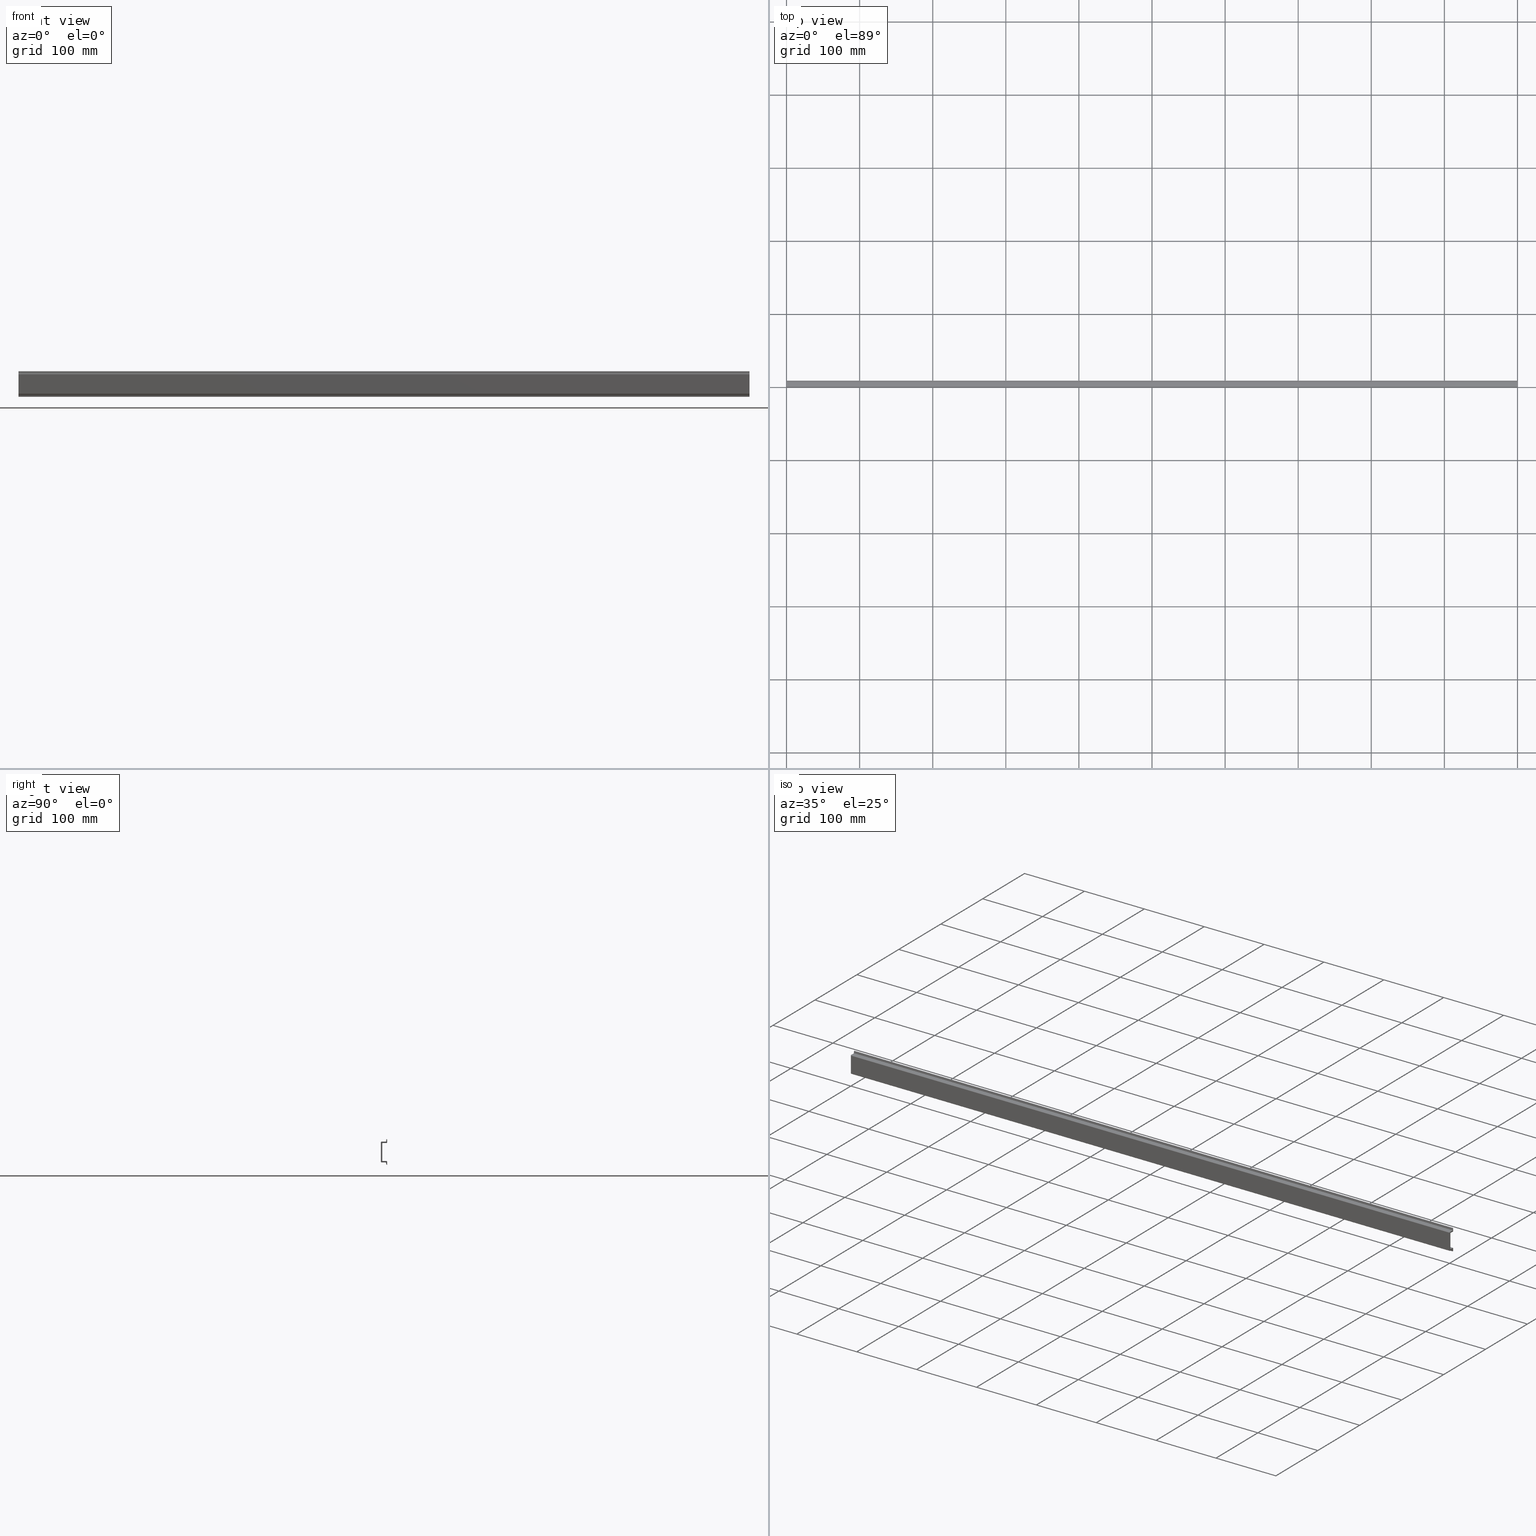
[diagram: canonical four-view strip — front | top / right | iso, engineering-drawing reading convention]
A machine part, canonical four-view strip (front | top / right | iso — engineering-drawing reading convention). The complete STEP part file that produces these views, byte-faithful:
ISO-10303-21;
HEADER;
FILE_DESCRIPTION (( 'STEP AP203' ),
    '1' );
FILE_NAME ('35x7,5 Al�minyum D�z Montaj Ray-1m.STEP',
    '2019-03-27T11:42:23',
    ( '' ),
    ( '' ),
    'SwSTEP 2.0',
    'SolidWorks 2011',
    '' );
FILE_SCHEMA (( 'CONFIG_CONTROL_DESIGN' ));
ENDSEC;

DATA;
#1 = PRODUCT ( '35x7,5 Al�minyum D�z Montaj Ray-1m', '35x7,5 Al�minyum D�z Montaj Ray-1m', '', ( #35 ) ) ;
#2 = UNCERTAINTY_MEASURE_WITH_UNIT (LENGTH_MEASURE( 1.000000000000000100E-005 ), #567, 'distance_accuracy_value', 'NONE');
#3 = DESIGN_CONTEXT ( 'detailed design', #664, 'design' ) ;
#4 = PRODUCT_DEFINITION_SHAPE ( 'NONE', 'NONE',  #655 ) ;
#5 = MANIFOLD_SOLID_BREP ( 'Y�kseklik-Ekstr�zyon1', #671 ) ;
#6 = COORDINATED_UNIVERSAL_TIME_OFFSET ( 3, 0, .AHEAD. ) ;
#7 = DIRECTION ( 'NONE',  ( 1.000000000000000000, 0.0000000000000000000, 0.0000000000000000000 ) ) ;
#8 = CALENDAR_DATE ( 2019, 27, 3 ) ;
#9 = DATE_AND_TIME ( #8, #758 ) ;
#10 = PERSON_AND_ORGANIZATION ( #663, #781 ) ;
#11 = PERSON_AND_ORGANIZATION ( #663, #781 ) ;
#12 = PERSON_AND_ORGANIZATION ( #663, #781 ) ;
#13 = APPLICATION_PROTOCOL_DEFINITION ( 'international standard', 'config_control_design', 1994, #665 ) ;
#14 = PERSON_AND_ORGANIZATION_ROLE ( 'classification_officer' ) ;
#15 = COORDINATED_UNIVERSAL_TIME_OFFSET ( 3, 0, .AHEAD. ) ;
#16 = CARTESIAN_POINT ( 'NONE',  ( 0.0000000000000000000, 0.0000000000000000000, 0.0000000000000000000 ) ) ;
#17 = CALENDAR_DATE ( 2019, 27, 3 ) ;
#18 = DATE_AND_TIME ( #17, #779 ) ;
#19 = DATE_TIME_ROLE ( 'classification_date' ) ;
#20 = COORDINATED_UNIVERSAL_TIME_OFFSET ( 3, 0, .AHEAD. ) ;
#21 = DATE_TIME_ROLE ( 'creation_date' ) ;
#22 = PERSON_AND_ORGANIZATION_ROLE ( 'design_supplier' ) ;
#23 = APPROVAL_ROLE ( '' ) ;
#24 = PERSON_AND_ORGANIZATION ( #663, #781 ) ;
#25 = APPROVAL_DATE_TIME ( #40, #656 ) ;
#26 = COORDINATED_UNIVERSAL_TIME_OFFSET ( 3, 0, .AHEAD. ) ;
#27 = CALENDAR_DATE ( 2019, 27, 3 ) ;
#28 = CALENDAR_DATE ( 2019, 27, 3 ) ;
#29 = PERSON_AND_ORGANIZATION ( #663, #781 ) ;
#30 = DATE_AND_TIME ( #27, #760 ) ;
#31 = APPROVAL_DATE_TIME ( #9, #658 ) ;
#32 = PERSON_AND_ORGANIZATION_ROLE ( 'creator' ) ;
#33 = SECURITY_CLASSIFICATION_LEVEL ( 'unclassified' ) ;
#34 = SHAPE_DEFINITION_REPRESENTATION ( #4, #662 ) ;
#35 = MECHANICAL_CONTEXT ( 'NONE', #665, 'mechanical' ) ;
#36 = DIRECTION ( 'NONE',  ( 0.0000000000000000000, 0.0000000000000000000, 1.000000000000000000 ) ) ;
#37 = PERSON_AND_ORGANIZATION_ROLE ( 'design_owner' ) ;
#38 = PERSON_AND_ORGANIZATION ( #663, #781 ) ;
#39 = APPROVAL_STATUS ( 'not_yet_approved' ) ;
#40 = DATE_AND_TIME ( #28, #762 ) ;
#41 = APPLICATION_PROTOCOL_DEFINITION ( 'international standard', 'config_control_design', 1994, #664 ) ;
#42 = PERSON_AND_ORGANIZATION ( #663, #781 ) ;
#43 = PERSON_AND_ORGANIZATION_ROLE ( 'creator' ) ;
#44 = APPROVAL_STATUS ( 'not_yet_approved' ) ;
#45 = APPROVAL_ROLE ( '' ) ;
#46 = APPROVAL_ROLE ( '' ) ;
#47 = APPROVAL_STATUS ( 'not_yet_approved' ) ;
#48 = DATE_AND_TIME ( #49, #767 ) ;
#49 = CALENDAR_DATE ( 2019, 27, 3 ) ;
#50 = APPROVAL_DATE_TIME ( #48, #617 ) ;
#51 = COORDINATED_UNIVERSAL_TIME_OFFSET ( 3, 0, .AHEAD. ) ;
#52 = PERSON_AND_ORGANIZATION ( #663, #781 ) ;
#53 = EDGE_LOOP ( 'NONE', ( #138, #106, #98, #130 ) ) ;
#54 = EDGE_LOOP ( 'NONE', ( #97, #114, #137, #94 ) ) ;
#55 = EDGE_LOOP ( 'NONE', ( #175, #199, #156, #209 ) ) ;
#56 = EDGE_LOOP ( 'NONE', ( #126, #107, #140, #133 ) ) ;
#57 = EDGE_LOOP ( 'NONE', ( #223, #259, #225, #255, #268, #233, #234, #267, #227, #249, #250, #252, #235, #260, #274, #248, #256, #263, #261, #232 ) ) ;
#58 = EDGE_LOOP ( 'NONE', ( #96, #112, #103, #111 ) ) ;
#59 = EDGE_LOOP ( 'NONE', ( #212, #189, #165, #152 ) ) ;
#60 = EDGE_LOOP ( 'NONE', ( #187, #190, #176, #191 ) ) ;
#61 = EDGE_LOOP ( 'NONE', ( #181, #196, #166, #193 ) ) ;
#62 = EDGE_LOOP ( 'NONE', ( #201, #179, #204, #171 ) ) ;
#63 = VERTEX_POINT ( 'NONE', #228 ) ;
#64 = EDGE_LOOP ( 'NONE', ( #125, #100, #93, #124 ) ) ;
#65 = EDGE_LOOP ( 'NONE', ( #194, #163, #206, #186 ) ) ;
#66 = EDGE_LOOP ( 'NONE', ( #95, #110, #155, #185 ) ) ;
#67 = EDGE_LOOP ( 'NONE', ( #127, #132, #129, #108 ) ) ;
#68 = EDGE_LOOP ( 'NONE', ( #158, #198, #169, #170 ) ) ;
#69 = CARTESIAN_POINT ( 'NONE',  ( 1000.000000000000000, 7.599999999999607100, 30.64999999999984200 ) ) ;
#70 = EDGE_LOOP ( 'NONE', ( #173, #151, #160, #210 ) ) ;
#71 = EDGE_LOOP ( 'NONE', ( #207, #208, #211, #153 ) ) ;
#72 = VERTEX_POINT ( 'NONE', #218 ) ;
#73 = VERTEX_POINT ( 'NONE', #253 ) ;
#74 = VERTEX_POINT ( 'NONE', #79 ) ;
#75 = EDGE_LOOP ( 'NONE', ( #154, #195, #180, #167 ) ) ;
#76 = EDGE_LOOP ( 'NONE', ( #182, #161, #178, #149, #203, #183, #172, #150, #192, #164, #184, #162, #157, #168, #224, #236, #245, #272, #241, #229 ) ) ;
#77 = EDGE_LOOP ( 'NONE', ( #91, #92, #113, #101 ) ) ;
#78 = EDGE_LOOP ( 'NONE', ( #202, #197, #188, #205 ) ) ;
#79 = CARTESIAN_POINT ( 'NONE',  ( 1000.000000000000000, 7.599999999999829100, -4.350000000000076000 ) ) ;
#80 = VERTEX_POINT ( 'NONE', #69 ) ;
#81 = EDGE_LOOP ( 'NONE', ( #177, #159, #200, #174 ) ) ;
#82 = VERTEX_POINT ( 'NONE', #89 ) ;
#83 = VERTEX_POINT ( 'NONE', #139 ) ;
#84 = VERTEX_POINT ( 'NONE', #273 ) ;
#85 = VERTEX_POINT ( 'NONE', #257 ) ;
#86 = VERTEX_POINT ( 'NONE', #237 ) ;
#87 = VERTEX_POINT ( 'NONE', #251 ) ;
#88 = VERTEX_POINT ( 'NONE', #258 ) ;
#89 = CARTESIAN_POINT ( 'NONE',  ( 1000.000000000000000, -1.110223024625156500E-013, 26.29999999999999000 ) ) ;
#90 = VERTEX_POINT ( 'NONE', #269 ) ;
#91 = ORIENTED_EDGE ( 'NONE', *, *, #615, .T. ) ;
#92 = ORIENTED_EDGE ( 'NONE', *, *, #603, .F. ) ;
#93 = ORIENTED_EDGE ( 'NONE', *, *, #580, .F. ) ;
#94 = ORIENTED_EDGE ( 'NONE', *, *, #604, .T. ) ;
#95 = ORIENTED_EDGE ( 'NONE', *, *, #591, .T. ) ;
#96 = ORIENTED_EDGE ( 'NONE', *, *, #568, .T. ) ;
#97 = ORIENTED_EDGE ( 'NONE', *, *, #589, .T. ) ;
#98 = ORIENTED_EDGE ( 'NONE', *, *, #628, .F. ) ;
#99 = VERTEX_POINT ( 'NONE', #244 ) ;
#100 = ORIENTED_EDGE ( 'NONE', *, *, #614, .F. ) ;
#101 = ORIENTED_EDGE ( 'NONE', *, *, #614, .T. ) ;
#102 = VERTEX_POINT ( 'NONE', #213 ) ;
#103 = ORIENTED_EDGE ( 'NONE', *, *, #585, .F. ) ;
#104 = VERTEX_POINT ( 'NONE', #226 ) ;
#105 = VERTEX_POINT ( 'NONE', #262 ) ;
#106 = ORIENTED_EDGE ( 'NONE', *, *, #604, .F. ) ;
#107 = ORIENTED_EDGE ( 'NONE', *, *, #630, .F. ) ;
#108 = ORIENTED_EDGE ( 'NONE', *, *, #630, .T. ) ;
#109 = VERTEX_POINT ( 'NONE', #239 ) ;
#110 = ORIENTED_EDGE ( 'NONE', *, *, #587, .F. ) ;
#111 = ORIENTED_EDGE ( 'NONE', *, *, #603, .T. ) ;
#112 = ORIENTED_EDGE ( 'NONE', *, *, #581, .F. ) ;
#113 = ORIENTED_EDGE ( 'NONE', *, *, #610, .F. ) ;
#114 = ORIENTED_EDGE ( 'NONE', *, *, #605, .F. ) ;
#115 = VERTEX_POINT ( 'NONE', #238 ) ;
#116 = VERTEX_POINT ( 'NONE', #230 ) ;
#117 = VERTEX_POINT ( 'NONE', #219 ) ;
#118 = VERTEX_POINT ( 'NONE', #264 ) ;
#119 = VERTEX_POINT ( 'NONE', #216 ) ;
#120 = VERTEX_POINT ( 'NONE', #265 ) ;
#121 = VERTEX_POINT ( 'NONE', #240 ) ;
#122 = VERTEX_POINT ( 'NONE', #254 ) ;
#123 = VERTEX_POINT ( 'NONE', #242 ) ;
#124 = ORIENTED_EDGE ( 'NONE', *, *, #616, .T. ) ;
#125 = ORIENTED_EDGE ( 'NONE', *, *, #613, .T. ) ;
#126 = ORIENTED_EDGE ( 'NONE', *, *, #584, .T. ) ;
#127 = ORIENTED_EDGE ( 'NONE', *, *, #575, .T. ) ;
#128 = VERTEX_POINT ( 'NONE', #270 ) ;
#129 = ORIENTED_EDGE ( 'NONE', *, *, #635, .F. ) ;
#130 = ORIENTED_EDGE ( 'NONE', *, *, #581, .T. ) ;
#131 = VERTEX_POINT ( 'NONE', #243 ) ;
#132 = ORIENTED_EDGE ( 'NONE', *, *, #578, .F. ) ;
#133 = ORIENTED_EDGE ( 'NONE', *, *, #605, .T. ) ;
#134 = VERTEX_POINT ( 'NONE', #266 ) ;
#135 = VERTEX_POINT ( 'NONE', #271 ) ;
#136 = VERTEX_POINT ( 'NONE', #214 ) ;
#137 = ORIENTED_EDGE ( 'NONE', *, *, #592, .F. ) ;
#138 = ORIENTED_EDGE ( 'NONE', *, *, #622, .T. ) ;
#139 = CARTESIAN_POINT ( 'NONE',  ( 0.0000000000000000000, 6.784593068918543000, -1.224273430855515900 ) ) ;
#140 = ORIENTED_EDGE ( 'NONE', *, *, #608, .F. ) ;
#141 = VERTEX_POINT ( 'NONE', #220 ) ;
#142 = VERTEX_POINT ( 'NONE', #246 ) ;
#143 = VERTEX_POINT ( 'NONE', #247 ) ;
#144 = VERTEX_POINT ( 'NONE', #215 ) ;
#145 = VERTEX_POINT ( 'NONE', #221 ) ;
#146 = VERTEX_POINT ( 'NONE', #222 ) ;
#147 = VERTEX_POINT ( 'NONE', #231 ) ;
#148 = VERTEX_POINT ( 'NONE', #217 ) ;
#149 = ORIENTED_EDGE ( 'NONE', *, *, #628, .T. ) ;
#150 = ORIENTED_EDGE ( 'NONE', *, *, #590, .T. ) ;
#151 = ORIENTED_EDGE ( 'NONE', *, *, #612, .F. ) ;
#152 = ORIENTED_EDGE ( 'NONE', *, *, #577, .T. ) ;
#153 = ORIENTED_EDGE ( 'NONE', *, *, #650, .T. ) ;
#154 = ORIENTED_EDGE ( 'NONE', *, *, #586, .T. ) ;
#155 = ORIENTED_EDGE ( 'NONE', *, *, #590, .F. ) ;
#156 = ORIENTED_EDGE ( 'NONE', *, *, #626, .F. ) ;
#157 = ORIENTED_EDGE ( 'NONE', *, *, #600, .T. ) ;
#158 = ORIENTED_EDGE ( 'NONE', *, *, #646, .T. ) ;
#159 = ORIENTED_EDGE ( 'NONE', *, *, #577, .F. ) ;
#160 = ORIENTED_EDGE ( 'NONE', *, *, #572, .F. ) ;
#161 = ORIENTED_EDGE ( 'NONE', *, *, #610, .T. ) ;
#162 = ORIENTED_EDGE ( 'NONE', *, *, #594, .T. ) ;
#163 = ORIENTED_EDGE ( 'NONE', *, *, #650, .F. ) ;
#164 = ORIENTED_EDGE ( 'NONE', *, *, #654, .T. ) ;
#165 = ORIENTED_EDGE ( 'NONE', *, *, #641, .F. ) ;
#166 = ORIENTED_EDGE ( 'NONE', *, *, #639, .F. ) ;
#167 = ORIENTED_EDGE ( 'NONE', *, *, #588, .T. ) ;
#168 = ORIENTED_EDGE ( 'NONE', *, *, #601, .T. ) ;
#169 = ORIENTED_EDGE ( 'NONE', *, *, #594, .F. ) ;
#170 = ORIENTED_EDGE ( 'NONE', *, *, #612, .T. ) ;
#171 = ORIENTED_EDGE ( 'NONE', *, *, #595, .T. ) ;
#172 = ORIENTED_EDGE ( 'NONE', *, *, #635, .T. ) ;
#173 = ORIENTED_EDGE ( 'NONE', *, *, #640, .T. ) ;
#174 = ORIENTED_EDGE ( 'NONE', *, *, #611, .T. ) ;
#175 = ORIENTED_EDGE ( 'NONE', *, *, #651, .T. ) ;
#176 = ORIENTED_EDGE ( 'NONE', *, *, #632, .F. ) ;
#177 = ORIENTED_EDGE ( 'NONE', *, *, #576, .T. ) ;
#178 = ORIENTED_EDGE ( 'NONE', *, *, #585, .T. ) ;
#179 = ORIENTED_EDGE ( 'NONE', *, *, #611, .F. ) ;
#180 = ORIENTED_EDGE ( 'NONE', *, *, #654, .F. ) ;
#181 = ORIENTED_EDGE ( 'NONE', *, *, #623, .T. ) ;
#182 = ORIENTED_EDGE ( 'NONE', *, *, #580, .T. ) ;
#183 = ORIENTED_EDGE ( 'NONE', *, *, #608, .T. ) ;
#184 = ORIENTED_EDGE ( 'NONE', *, *, #572, .T. ) ;
#185 = ORIENTED_EDGE ( 'NONE', *, *, #578, .T. ) ;
#186 = ORIENTED_EDGE ( 'NONE', *, *, #634, .T. ) ;
#187 = ORIENTED_EDGE ( 'NONE', *, *, #621, .T. ) ;
#188 = ORIENTED_EDGE ( 'NONE', *, *, #600, .F. ) ;
#189 = ORIENTED_EDGE ( 'NONE', *, *, #648, .F. ) ;
#190 = ORIENTED_EDGE ( 'NONE', *, *, #634, .F. ) ;
#191 = ORIENTED_EDGE ( 'NONE', *, *, #648, .T. ) ;
#192 = ORIENTED_EDGE ( 'NONE', *, *, #626, .T. ) ;
#193 = ORIENTED_EDGE ( 'NONE', *, *, #652, .T. ) ;
#194 = ORIENTED_EDGE ( 'NONE', *, *, #620, .T. ) ;
#195 = ORIENTED_EDGE ( 'NONE', *, *, #597, .F. ) ;
#196 = ORIENTED_EDGE ( 'NONE', *, *, #616, .F. ) ;
#197 = ORIENTED_EDGE ( 'NONE', *, *, #595, .F. ) ;
#198 = ORIENTED_EDGE ( 'NONE', *, *, #571, .F. ) ;
#199 = ORIENTED_EDGE ( 'NONE', *, *, #588, .F. ) ;
#200 = ORIENTED_EDGE ( 'NONE', *, *, #625, .F. ) ;
#201 = ORIENTED_EDGE ( 'NONE', *, *, #570, .T. ) ;
#202 = ORIENTED_EDGE ( 'NONE', *, *, #579, .T. ) ;
#203 = ORIENTED_EDGE ( 'NONE', *, *, #592, .T. ) ;
#204 = ORIENTED_EDGE ( 'NONE', *, *, #601, .F. ) ;
#205 = ORIENTED_EDGE ( 'NONE', *, *, #571, .T. ) ;
#206 = ORIENTED_EDGE ( 'NONE', *, *, #660, .F. ) ;
#207 = ORIENTED_EDGE ( 'NONE', *, *, #638, .T. ) ;
#208 = ORIENTED_EDGE ( 'NONE', *, *, #652, .F. ) ;
#209 = ORIENTED_EDGE ( 'NONE', *, *, #587, .T. ) ;
#210 = ORIENTED_EDGE ( 'NONE', *, *, #597, .T. ) ;
#211 = ORIENTED_EDGE ( 'NONE', *, *, #643, .F. ) ;
#212 = ORIENTED_EDGE ( 'NONE', *, *, #647, .T. ) ;
#213 = CARTESIAN_POINT ( 'NONE',  ( 1000.000000000000000, 7.227162839129873900, 27.73653245076380400 ) ) ;
#214 = CARTESIAN_POINT ( 'NONE',  ( 0.0000000000000000000, 1.899999999999901800, 25.09999999999967800 ) ) ;
#215 = CARTESIAN_POINT ( 'NONE',  ( 0.0000000000000000000, 6.494307887199402000, -0.9999999999997712900 ) ) ;
#216 = CARTESIAN_POINT ( 'NONE',  ( 1000.000000000000000, 1.899999999999901800, 25.09999999999967800 ) ) ;
#217 = CARTESIAN_POINT ( 'NONE',  ( 1000.000000000000000, 7.599999999999496000, 25.39999999999981000 ) ) ;
#218 = CARTESIAN_POINT ( 'NONE',  ( 0.0000000000000000000, 8.599999999999496900, 30.64999999999984200 ) ) ;
#219 = CARTESIAN_POINT ( 'NONE',  ( 1000.000000000000000, -5.551115123125782700E-014, 1.836970198720929400E-016 ) ) ;
#220 = CARTESIAN_POINT ( 'NONE',  ( 0.0000000000000000000, 2.199999999999979700, 0.8999999999998453700 ) ) ;
#221 = CARTESIAN_POINT ( 'NONE',  ( 0.0000000000000000000, 8.599999999999496900, 26.39999999999975700 ) ) ;
#222 = CARTESIAN_POINT ( 'NONE',  ( 0.0000000000000000000, 7.599999999999607100, 0.8999999999999008800 ) ) ;
#223 = ORIENTED_EDGE ( 'NONE', *, *, #613, .F. ) ;
#224 = ORIENTED_EDGE ( 'NONE', *, *, #625, .T. ) ;
#225 = ORIENTED_EDGE ( 'NONE', *, *, #638, .F. ) ;
#226 = CARTESIAN_POINT ( 'NONE',  ( 1000.000000000000000, 8.599999999999607100, -4.350000000000076000 ) ) ;
#227 = ORIENTED_EDGE ( 'NONE', *, *, #579, .F. ) ;
#228 = CARTESIAN_POINT ( 'NONE',  ( 0.0000000000000000000, 7.599999999999607100, 30.64999999999984200 ) ) ;
#229 = ORIENTED_EDGE ( 'NONE', *, *, #639, .T. ) ;
#230 = CARTESIAN_POINT ( 'NONE',  ( 1000.000000000000000, 0.9999999999998900900, 27.29999999999993700 ) ) ;
#231 = CARTESIAN_POINT ( 'NONE',  ( 1000.000000000000000, 1.899999999999901800, 1.199999999999867800 ) ) ;
#232 = ORIENTED_EDGE ( 'NONE', *, *, #615, .F. ) ;
#233 = ORIENTED_EDGE ( 'NONE', *, *, #647, .F. ) ;
#234 = ORIENTED_EDGE ( 'NONE', *, *, #576, .F. ) ;
#235 = ORIENTED_EDGE ( 'NONE', *, *, #651, .F. ) ;
#236 = ORIENTED_EDGE ( 'NONE', *, *, #641, .T. ) ;
#237 = CARTESIAN_POINT ( 'NONE',  ( 1000.000000000000000, 6.494307887199402000, -0.9999999999997712900 ) ) ;
#238 = CARTESIAN_POINT ( 'NONE',  ( 0.0000000000000000000, 0.9999999999998900900, 27.29999999999993700 ) ) ;
#239 = CARTESIAN_POINT ( 'NONE',  ( 1000.000000000000000, 2.199999999999868700, 25.39999999999986700 ) ) ;
#240 = CARTESIAN_POINT ( 'NONE',  ( 0.0000000000000000000, 7.227162839129873900, 27.73653245076380400 ) ) ;
#241 = ORIENTED_EDGE ( 'NONE', *, *, #643, .T. ) ;
#242 = CARTESIAN_POINT ( 'NONE',  ( 0.0000000000000000000, 7.599999999999496000, 25.39999999999981000 ) ) ;
#243 = CARTESIAN_POINT ( 'NONE',  ( 1000.000000000000000, 6.731207326816646100, 27.29999999999988000 ) ) ;
#244 = CARTESIAN_POINT ( 'NONE',  ( 0.0000000000000000000, -1.110223024625156500E-013, 26.29999999999999000 ) ) ;
#245 = ORIENTED_EDGE ( 'NONE', *, *, #632, .T. ) ;
#246 = CARTESIAN_POINT ( 'NONE',  ( 0.0000000000000000000, 1.899999999999901800, 1.199999999999867800 ) ) ;
#247 = CARTESIAN_POINT ( 'NONE',  ( 1000.000000000000000, 7.599999999999607100, 0.8999999999999008800 ) ) ;
#248 = ORIENTED_EDGE ( 'NONE', *, *, #584, .F. ) ;
#249 = ORIENTED_EDGE ( 'NONE', *, *, #646, .F. ) ;
#250 = ORIENTED_EDGE ( 'NONE', *, *, #640, .F. ) ;
#251 = CARTESIAN_POINT ( 'NONE',  ( 1000.000000000000000, 8.599999999999663900, -0.1000000000002111000 ) ) ;
#252 = ORIENTED_EDGE ( 'NONE', *, *, #586, .F. ) ;
#253 = CARTESIAN_POINT ( 'NONE',  ( 0.0000000000000000000, -5.551115123125782700E-014, 1.836970198720929400E-016 ) ) ;
#254 = CARTESIAN_POINT ( 'NONE',  ( 0.0000000000000000000, 8.599999999999663900, -0.1000000000002111000 ) ) ;
#255 = ORIENTED_EDGE ( 'NONE', *, *, #620, .F. ) ;
#256 = ORIENTED_EDGE ( 'NONE', *, *, #589, .F. ) ;
#257 = CARTESIAN_POINT ( 'NONE',  ( 0.0000000000000000000, 8.599999999999607100, -4.350000000000076000 ) ) ;
#258 = CARTESIAN_POINT ( 'NONE',  ( 1000.000000000000000, 2.199999999999979700, 0.8999999999998453700 ) ) ;
#259 = ORIENTED_EDGE ( 'NONE', *, *, #623, .F. ) ;
#260 = ORIENTED_EDGE ( 'NONE', *, *, #591, .F. ) ;
#261 = ORIENTED_EDGE ( 'NONE', *, *, #568, .F. ) ;
#262 = CARTESIAN_POINT ( 'NONE',  ( 1000.000000000000000, 8.599999999999496900, 26.39999999999975700 ) ) ;
#263 = ORIENTED_EDGE ( 'NONE', *, *, #622, .F. ) ;
#264 = CARTESIAN_POINT ( 'NONE',  ( 0.0000000000000000000, 7.599999999999829100, -4.350000000000076000 ) ) ;
#265 = CARTESIAN_POINT ( 'NONE',  ( 0.0000000000000000000, 2.199999999999868700, 25.39999999999986700 ) ) ;
#266 = CARTESIAN_POINT ( 'NONE',  ( 0.0000000000000000000, 0.9999999999998898700, -0.9999999999998898700 ) ) ;
#267 = ORIENTED_EDGE ( 'NONE', *, *, #570, .F. ) ;
#268 = ORIENTED_EDGE ( 'NONE', *, *, #621, .F. ) ;
#269 = CARTESIAN_POINT ( 'NONE',  ( 1000.000000000000000, 0.9999999999998898700, -0.9999999999998898700 ) ) ;
#270 = CARTESIAN_POINT ( 'NONE',  ( 0.0000000000000000000, 6.731207326816646100, 27.29999999999988000 ) ) ;
#271 = CARTESIAN_POINT ( 'NONE',  ( 1000.000000000000000, 6.784593068918543000, -1.224273430855515900 ) ) ;
#272 = ORIENTED_EDGE ( 'NONE', *, *, #660, .T. ) ;
#273 = CARTESIAN_POINT ( 'NONE',  ( 1000.000000000000000, 8.599999999999496900, 30.64999999999984200 ) ) ;
#274 = ORIENTED_EDGE ( 'NONE', *, *, #575, .F. ) ;
#275 = DIRECTION ( 'NONE',  ( 0.0000000000000000000, 0.0000000000000000000, -1.000000000000000000 ) ) ;
#276 = CARTESIAN_POINT ( 'NONE',  ( 1000.000000000000000, 8.599999999999496900, 30.64999999999984200 ) ) ;
#277 = CYLINDRICAL_SURFACE ( 'NONE', #686, 0.9999999999999453800 ) ;
#278 = DIRECTION ( 'NONE',  ( 0.0000000000000000000, -1.000000000000000000, 0.0000000000000000000 ) ) ;
#279 = CARTESIAN_POINT ( 'NONE',  ( 0.0000000000000000000, 6.731207326816535100, 27.79999999999982700 ) ) ;
#280 = DIRECTION ( 'NONE',  ( 1.000000000000000000, 0.0000000000000000000, 0.0000000000000000000 ) ) ;
#281 = DIRECTION ( 'NONE',  ( -1.000000000000000000, 0.0000000000000000000, -0.0000000000000000000 ) ) ;
#282 = CARTESIAN_POINT ( 'NONE',  ( 1000.000000000000000, 0.9999999999998898700, -0.9999999999998898700 ) ) ;
#283 = DIRECTION ( 'NONE',  ( -1.000000000000000000, -0.0000000000000000000, -0.0000000000000000000 ) ) ;
#284 = DIRECTION ( 'NONE',  ( 0.0000000000000000000, 0.0000000000000000000, -1.000000000000000000 ) ) ;
#285 = CARTESIAN_POINT ( 'NONE',  ( 1000.000000000000000, 7.599999999999607100, 0.8999999999999008800 ) ) ;
#286 = PLANE ( 'NONE',  #698 ) ;
#287 = DIRECTION ( 'NONE',  ( -1.000000000000000000, -0.0000000000000000000, -0.0000000000000000000 ) ) ;
#288 = DIRECTION ( 'NONE',  ( 0.0000000000000000000, 0.0000000000000000000, -1.000000000000000000 ) ) ;
#289 = DIRECTION ( 'NONE',  ( -1.000000000000000000, -0.0000000000000000000, -0.0000000000000000000 ) ) ;
#290 = FACE_OUTER_BOUND ( 'NONE', #57, .T. ) ;
#291 = CARTESIAN_POINT ( 'NONE',  ( 1000.000000000000000, 7.599999999999496000, 26.39999999999975700 ) ) ;
#292 = LINE ( 'NONE', #302, #691 ) ;
#293 = DIRECTION ( 'NONE',  ( 0.0000000000000000000, 0.0000000000000000000, -1.000000000000000000 ) ) ;
#294 = DIRECTION ( 'NONE',  ( 0.0000000000000000000, 0.0000000000000000000, 1.000000000000000000 ) ) ;
#295 = CARTESIAN_POINT ( 'NONE',  ( 0.0000000000000000000, 2.199999999999979700, 1.199999999999867800 ) ) ;
#296 = CARTESIAN_POINT ( 'NONE',  ( 1000.000000000000000, 8.599999999999663900, -0.1000000000002111000 ) ) ;
#297 = LINE ( 'NONE', #276, #678 ) ;
#298 = DIRECTION ( 'NONE',  ( 0.0000000000000000000, 0.0000000000000000000, -1.000000000000000000 ) ) ;
#299 = CARTESIAN_POINT ( 'NONE',  ( 0.0000000000000000000, 7.599999999999607100, 0.8999999999999008800 ) ) ;
#300 = CARTESIAN_POINT ( 'NONE',  ( 0.0000000000000000000, 6.731207326816535100, 27.79999999999982700 ) ) ;
#301 = LINE ( 'NONE', #309, #667 ) ;
#302 = CARTESIAN_POINT ( 'NONE',  ( 1000.000000000000000, 1.899999999999901800, 1.199999999999867800 ) ) ;
#303 = DIRECTION ( 'NONE',  ( 1.000000000000000000, 0.0000000000000000000, 0.0000000000000000000 ) ) ;
#304 = PLANE ( 'NONE',  #670 ) ;
#305 = LINE ( 'NONE', #299, #669 ) ;
#306 = DIRECTION ( 'NONE',  ( -1.000000000000000000, -0.0000000000000000000, -0.0000000000000000000 ) ) ;
#307 = DIRECTION ( 'NONE',  ( -0.0000000000000000000, 1.000000000000000000, -0.0000000000000000000 ) ) ;
#308 = DIRECTION ( 'NONE',  ( 0.0000000000000000000, 0.0000000000000000000, -1.000000000000000000 ) ) ;
#309 = CARTESIAN_POINT ( 'NONE',  ( 1000.000000000000000, 8.599999999999607100, -4.350000000000076000 ) ) ;
#310 = FACE_OUTER_BOUND ( 'NONE', #62, .T. ) ;
#311 = CARTESIAN_POINT ( 'NONE',  ( 0.0000000000000000000, 0.9999999999998898700, 0.0000000000000000000 ) ) ;
#312 = DIRECTION ( 'NONE',  ( -1.000000000000000000, -0.0000000000000000000, -0.0000000000000000000 ) ) ;
#313 = DIRECTION ( 'NONE',  ( -1.000000000000000000, -0.0000000000000000000, -0.0000000000000000000 ) ) ;
#314 = CARTESIAN_POINT ( 'NONE',  ( 0.0000000000000000000, 7.599999999999607100, -0.1000000000002110300 ) ) ;
#315 = DIRECTION ( 'NONE',  ( 1.000000000000000000, 0.0000000000000000000, 0.0000000000000000000 ) ) ;
#316 = DIRECTION ( 'NONE',  ( 0.0000000000000000000, -1.000000000000000000, 0.0000000000000000000 ) ) ;
#317 = LINE ( 'NONE', #282, #690 ) ;
#318 = FACE_OUTER_BOUND ( 'NONE', #71, .T. ) ;
#319 = LINE ( 'NONE', #296, #674 ) ;
#320 = CARTESIAN_POINT ( 'NONE',  ( 0.0000000000000000000, 6.494307887199402000, -0.9999999999998898700 ) ) ;
#321 = FACE_OUTER_BOUND ( 'NONE', #76, .T. ) ;
#322 = LINE ( 'NONE', #415, #715 ) ;
#323 = PLANE ( 'NONE',  #705 ) ;
#324 = DIRECTION ( 'NONE',  ( -0.0000000000000000000, 1.000000000000000000, -0.0000000000000000000 ) ) ;
#325 = DIRECTION ( 'NONE',  ( 1.000000000000000000, 0.0000000000000000000, 0.0000000000000000000 ) ) ;
#326 = LINE ( 'NONE', #364, #677 ) ;
#327 = DIRECTION ( 'NONE',  ( 0.0000000000000000000, 0.0000000000000000000, -1.000000000000000000 ) ) ;
#328 = LINE ( 'NONE', #386, #716 ) ;
#329 = DIRECTION ( 'NONE',  ( 0.0000000000000000000, 0.0000000000000000000, -1.000000000000000000 ) ) ;
#330 = FACE_OUTER_BOUND ( 'NONE', #68, .T. ) ;
#331 = DIRECTION ( 'NONE',  ( 0.0000000000000000000, -0.2524218971470307300, 0.9676172723968365900 ) ) ;
#332 = DIRECTION ( 'NONE',  ( -1.000000000000000000, -0.0000000000000000000, -0.0000000000000000000 ) ) ;
#333 = PLANE ( 'NONE',  #688 ) ;
#334 = DIRECTION ( 'NONE',  ( 1.000000000000000000, 0.0000000000000000000, 0.0000000000000000000 ) ) ;
#335 = DIRECTION ( 'NONE',  ( 0.0000000000000000000, 0.2524218971470307300, -0.9676172723968365900 ) ) ;
#336 = CARTESIAN_POINT ( 'NONE',  ( 1000.000000000000000, 6.731207326816646100, 27.29999999999988000 ) ) ;
#337 = CARTESIAN_POINT ( 'NONE',  ( 1000.000000000000000, 6.494307887199402000, -0.9999999999997712900 ) ) ;
#338 = CARTESIAN_POINT ( 'NONE',  ( 0.0000000000000000000, -1.110223024625156500E-013, 26.29999999999999000 ) ) ;
#339 = FACE_OUTER_BOUND ( 'NONE', #59, .T. ) ;
#340 = CARTESIAN_POINT ( 'NONE',  ( 1000.000000000000000, 0.9999999999998898700, 26.29999999999999000 ) ) ;
#341 = DIRECTION ( 'NONE',  ( 1.000000000000000000, 0.0000000000000000000, 0.0000000000000000000 ) ) ;
#342 = DIRECTION ( 'NONE',  ( 0.0000000000000000000, 0.0000000000000000000, -1.000000000000000000 ) ) ;
#343 = CARTESIAN_POINT ( 'NONE',  ( 1000.000000000000000, 6.731207326816535100, 27.79999999999982700 ) ) ;
#344 = CARTESIAN_POINT ( 'NONE',  ( 1000.000000000000000, 6.731207326816535100, 27.79999999999982700 ) ) ;
#345 = LINE ( 'NONE', #320, #683 ) ;
#346 = DIRECTION ( 'NONE',  ( 0.0000000000000000000, -1.000000000000000000, 0.0000000000000000000 ) ) ;
#347 = FACE_OUTER_BOUND ( 'NONE', #75, .T. ) ;
#348 = DIRECTION ( 'NONE',  ( -0.0000000000000000000, 1.000000000000000000, -0.0000000000000000000 ) ) ;
#349 = DIRECTION ( 'NONE',  ( 0.0000000000000000000, -0.0000000000000000000, -1.000000000000000000 ) ) ;
#350 = DIRECTION ( 'NONE',  ( 0.0000000000000000000, 0.0000000000000000000, -1.000000000000000000 ) ) ;
#351 = CARTESIAN_POINT ( 'NONE',  ( 1000.000000000000000, 8.599999999999607100, -0.1000000000002110300 ) ) ;
#352 = DIRECTION ( 'NONE',  ( -1.000000000000000000, -0.0000000000000000000, -0.0000000000000000000 ) ) ;
#353 = DIRECTION ( 'NONE',  ( -0.0000000000000000000, 0.9676172723968365900, 0.2524218971470307300 ) ) ;
#354 = CARTESIAN_POINT ( 'NONE',  ( 1000.000000000000000, 6.784593068918543000, -1.224273430855515900 ) ) ;
#355 = LINE ( 'NONE', #337, #681 ) ;
#356 = DIRECTION ( 'NONE',  ( -1.000000000000000000, -0.0000000000000000000, -0.0000000000000000000 ) ) ;
#357 = LINE ( 'NONE', #336, #680 ) ;
#358 = DIRECTION ( 'NONE',  ( -1.000000000000000000, -0.0000000000000000000, -0.0000000000000000000 ) ) ;
#359 = LINE ( 'NONE', #360, #685 ) ;
#360 = CARTESIAN_POINT ( 'NONE',  ( 1000.000000000000000, 6.784593068918543000, -1.224273430855515900 ) ) ;
#361 = CARTESIAN_POINT ( 'NONE',  ( 0.0000000000000000000, 6.784593068918543000, -1.224273430855515900 ) ) ;
#362 = LINE ( 'NONE', #338, #695 ) ;
#363 = LINE ( 'NONE', #361, #694 ) ;
#364 = CARTESIAN_POINT ( 'NONE',  ( 1000.000000000000000, 6.494307887199402000, -0.9999999999998898700 ) ) ;
#365 = CARTESIAN_POINT ( 'NONE',  ( 0.0000000000000000000, 0.9999999999998898700, 26.29999999999999000 ) ) ;
#366 = PLANE ( 'NONE',  #687 ) ;
#367 = DIRECTION ( 'NONE',  ( 0.0000000000000000000, 0.0000000000000000000, -1.000000000000000000 ) ) ;
#368 = CARTESIAN_POINT ( 'NONE',  ( 1000.000000000000000, 8.599999999999496900, 30.64999999999984200 ) ) ;
#369 = PLANE ( 'NONE',  #727 ) ;
#370 = DIRECTION ( 'NONE',  ( 0.0000000000000000000, 0.0000000000000000000, 1.000000000000000000 ) ) ;
#371 = CARTESIAN_POINT ( 'NONE',  ( 1000.000000000000000, 7.599999999999496000, 25.39999999999986700 ) ) ;
#372 = DIRECTION ( 'NONE',  ( 0.0000000000000000000, -1.000000000000000000, 0.0000000000000000000 ) ) ;
#373 = LINE ( 'NONE', #382, #717 ) ;
#374 = DIRECTION ( 'NONE',  ( -0.0000000000000000000, 0.0000000000000000000, 1.000000000000000000 ) ) ;
#375 = DIRECTION ( 'NONE',  ( 1.000000000000000000, 0.0000000000000000000, 0.0000000000000000000 ) ) ;
#376 = CARTESIAN_POINT ( 'NONE',  ( 1000.000000000000000, 8.599999999999607100, -4.350000000000076000 ) ) ;
#377 = DIRECTION ( 'NONE',  ( 1.000000000000000000, 0.0000000000000000000, 0.0000000000000000000 ) ) ;
#378 = CYLINDRICAL_SURFACE ( 'NONE', #699, 1.000000000000056400 ) ;
#379 = DIRECTION ( 'NONE',  ( 0.0000000000000000000, -1.000000000000000000, 0.0000000000000000000 ) ) ;
#380 = CARTESIAN_POINT ( 'NONE',  ( 1000.000000000000000, 0.9999999999998900900, 27.29999999999993700 ) ) ;
#381 = DIRECTION ( 'NONE',  ( -1.000000000000000000, -0.0000000000000000000, -0.0000000000000000000 ) ) ;
#382 = CARTESIAN_POINT ( 'NONE',  ( 1000.000000000000000, 7.227162839129873900, 27.73653245076380400 ) ) ;
#383 = FACE_OUTER_BOUND ( 'NONE', #70, .T. ) ;
#384 = PLANE ( 'NONE',  #752 ) ;
#385 = DIRECTION ( 'NONE',  ( 0.0000000000000000000, 0.0000000000000000000, 1.000000000000000000 ) ) ;
#386 = CARTESIAN_POINT ( 'NONE',  ( 1000.000000000000000, 8.599999999999607100, -0.1000000000002110300 ) ) ;
#387 = CARTESIAN_POINT ( 'NONE',  ( 1000.000000000000000, 7.599999999999607100, 0.8999999999999008800 ) ) ;
#388 = DIRECTION ( 'NONE',  ( 0.0000000000000000000, 0.0000000000000000000, -1.000000000000000000 ) ) ;
#389 = FACE_OUTER_BOUND ( 'NONE', #60, .T. ) ;
#390 = DIRECTION ( 'NONE',  ( -1.000000000000000000, -0.0000000000000000000, -0.0000000000000000000 ) ) ;
#391 = DIRECTION ( 'NONE',  ( -1.000000000000000000, -0.0000000000000000000, -0.0000000000000000000 ) ) ;
#392 = DIRECTION ( 'NONE',  ( -1.000000000000000000, -0.0000000000000000000, -0.0000000000000000000 ) ) ;
#393 = DIRECTION ( 'NONE',  ( -0.0000000000000000000, 0.0000000000000000000, 1.000000000000000000 ) ) ;
#394 = FACE_OUTER_BOUND ( 'NONE', #78, .T. ) ;
#395 = CARTESIAN_POINT ( 'NONE',  ( 1000.000000000000000, 2.199999999999868700, 25.09999999999990200 ) ) ;
#396 = CARTESIAN_POINT ( 'NONE',  ( 1000.000000000000000, 1.899999999999901800, 25.09999999999967800 ) ) ;
#397 = FACE_OUTER_BOUND ( 'NONE', #65, .T. ) ;
#398 = DIRECTION ( 'NONE',  ( -1.000000000000000000, -0.0000000000000000000, -0.0000000000000000000 ) ) ;
#399 = DIRECTION ( 'NONE',  ( 0.0000000000000000000, -1.000000000000000000, 0.0000000000000000000 ) ) ;
#400 = DIRECTION ( 'NONE',  ( 0.0000000000000000000, -0.0000000000000000000, -1.000000000000000000 ) ) ;
#401 = CARTESIAN_POINT ( 'NONE',  ( 1000.000000000000000, 7.599999999999607100, -0.1000000000002110300 ) ) ;
#402 = CYLINDRICAL_SURFACE ( 'NONE', #747, 0.2999999999999669600 ) ;
#403 = LINE ( 'NONE', #380, #706 ) ;
#404 = DIRECTION ( 'NONE',  ( -0.0000000000000000000, -0.0000000000000000000, 1.000000000000000000 ) ) ;
#405 = LINE ( 'NONE', #387, #714 ) ;
#406 = CARTESIAN_POINT ( 'NONE',  ( 1000.000000000000000, 7.599999999999607100, -0.1000000000002110300 ) ) ;
#407 = CYLINDRICAL_SURFACE ( 'NONE', #710, 0.3000000000000224700 ) ;
#408 = LINE ( 'NONE', #409, #743 ) ;
#409 = CARTESIAN_POINT ( 'NONE',  ( 1000.000000000000000, -1.110223024625156500E-013, 26.29999999999999000 ) ) ;
#410 = PLANE ( 'NONE',  #713 ) ;
#411 = DIRECTION ( 'NONE',  ( 0.0000000000000000000, -0.0000000000000000000, -1.000000000000000000 ) ) ;
#412 = LINE ( 'NONE', #413, #757 ) ;
#413 = CARTESIAN_POINT ( 'NONE',  ( 1000.000000000000000, 7.599999999999829100, -4.350000000000076000 ) ) ;
#414 = DIRECTION ( 'NONE',  ( -1.000000000000000000, -0.0000000000000000000, -0.0000000000000000000 ) ) ;
#415 = CARTESIAN_POINT ( 'NONE',  ( 1000.000000000000000, 7.599999999999607100, 0.8999999999999008800 ) ) ;
#416 = FACE_OUTER_BOUND ( 'NONE', #61, .T. ) ;
#417 = DIRECTION ( 'NONE',  ( -1.000000000000000000, -0.0000000000000000000, -0.0000000000000000000 ) ) ;
#418 = PLANE ( 'NONE',  #729 ) ;
#419 = FACE_OUTER_BOUND ( 'NONE', #81, .T. ) ;
#420 = CARTESIAN_POINT ( 'NONE',  ( 1000.000000000000000, 8.599999999999607100, -4.350000000000076000 ) ) ;
#421 = DIRECTION ( 'NONE',  ( 0.0000000000000000000, 0.0000000000000000000, -1.000000000000000000 ) ) ;
#422 = CARTESIAN_POINT ( 'NONE',  ( 0.0000000000000000000, 6.731207326816646100, 27.29999999999988000 ) ) ;
#423 = CARTESIAN_POINT ( 'NONE',  ( 1000.000000000000000, 2.199999999999979700, 1.199999999999867800 ) ) ;
#424 = LINE ( 'NONE', #442, #719 ) ;
#425 = CARTESIAN_POINT ( 'NONE',  ( 0.0000000000000000000, 8.599999999999496900, 30.64999999999984200 ) ) ;
#426 = DIRECTION ( 'NONE',  ( -0.0000000000000000000, -0.0000000000000000000, 1.000000000000000000 ) ) ;
#427 = CARTESIAN_POINT ( 'NONE',  ( 1000.000000000000000, 7.599999999999607100, 30.64999999999984200 ) ) ;
#428 = CARTESIAN_POINT ( 'NONE',  ( 1000.000000000000000, 7.227162839129941400, 27.73653245076379600 ) ) ;
#429 = DIRECTION ( 'NONE',  ( -1.000000000000000000, -0.0000000000000000000, -0.0000000000000000000 ) ) ;
#430 = LINE ( 'NONE', #460, #704 ) ;
#431 = DIRECTION ( 'NONE',  ( -1.000000000000000000, -0.0000000000000000000, -0.0000000000000000000 ) ) ;
#432 = DIRECTION ( 'NONE',  ( 0.0000000000000000000, 0.0000000000000000000, -1.000000000000000000 ) ) ;
#433 = CARTESIAN_POINT ( 'NONE',  ( 1000.000000000000000, 2.199999999999979700, 1.199999999999867800 ) ) ;
#434 = DIRECTION ( 'NONE',  ( 0.0000000000000000000, -1.000000000000000000, 0.0000000000000000000 ) ) ;
#435 = LINE ( 'NONE', #438, #738 ) ;
#436 = LINE ( 'NONE', #437, #732 ) ;
#437 = CARTESIAN_POINT ( 'NONE',  ( 0.0000000000000000000, 7.599999999999496000, 25.39999999999986700 ) ) ;
#438 = CARTESIAN_POINT ( 'NONE',  ( 1000.000000000000000, 6.731207326816646100, 27.29999999999988000 ) ) ;
#439 = DIRECTION ( 'NONE',  ( -0.0000000000000000000, -0.1269350984719558600, -0.9919110246266622500 ) ) ;
#440 = CARTESIAN_POINT ( 'NONE',  ( 0.0000000000000000000, 8.599999999999496900, 30.64999999999984200 ) ) ;
#441 = LINE ( 'NONE', #453, #756 ) ;
#442 = CARTESIAN_POINT ( 'NONE',  ( 1000.000000000000000, 2.199999999999979700, 0.8999999999998453700 ) ) ;
#443 = LINE ( 'NONE', #445, #703 ) ;
#444 = LINE ( 'NONE', #420, #728 ) ;
#445 = CARTESIAN_POINT ( 'NONE',  ( 0.0000000000000000000, 7.227162839129941400, 27.73653245076379600 ) ) ;
#446 = DIRECTION ( 'NONE',  ( -1.000000000000000000, -0.0000000000000000000, -0.0000000000000000000 ) ) ;
#447 = LINE ( 'NONE', #427, #707 ) ;
#448 = DIRECTION ( 'NONE',  ( 1.000000000000000000, 0.0000000000000000000, 0.0000000000000000000 ) ) ;
#449 = DIRECTION ( 'NONE',  ( -0.0000000000000000000, -0.1269350984719558600, -0.9919110246266622500 ) ) ;
#450 = LINE ( 'NONE', #440, #753 ) ;
#451 = DIRECTION ( 'NONE',  ( -1.000000000000000000, -0.0000000000000000000, -0.0000000000000000000 ) ) ;
#452 = LINE ( 'NONE', #428, #718 ) ;
#453 = CARTESIAN_POINT ( 'NONE',  ( 1000.000000000000000, -1.110223024625156500E-013, 26.29999999999999000 ) ) ;
#454 = DIRECTION ( 'NONE',  ( -0.0000000000000000000, 1.000000000000000000, -0.0000000000000000000 ) ) ;
#455 = CARTESIAN_POINT ( 'NONE',  ( 0.0000000000000000000, 2.199999999999868700, 25.09999999999990200 ) ) ;
#456 = LINE ( 'NONE', #422, #720 ) ;
#457 = DIRECTION ( 'NONE',  ( -1.000000000000000000, -0.0000000000000000000, -0.0000000000000000000 ) ) ;
#458 = DIRECTION ( 'NONE',  ( 0.0000000000000000000, 0.0000000000000000000, 1.000000000000000000 ) ) ;
#459 = DIRECTION ( 'NONE',  ( 0.0000000000000000000, -1.000000000000000000, 0.0000000000000000000 ) ) ;
#460 = CARTESIAN_POINT ( 'NONE',  ( 1000.000000000000000, 8.599999999999496900, 30.64999999999984200 ) ) ;
#461 = LINE ( 'NONE', #425, #745 ) ;
#462 = DIRECTION ( 'NONE',  ( -1.000000000000000000, -0.0000000000000000000, -0.0000000000000000000 ) ) ;
#463 = DIRECTION ( 'NONE',  ( -1.000000000000000000, -0.0000000000000000000, -0.0000000000000000000 ) ) ;
#464 = CARTESIAN_POINT ( 'NONE',  ( 1000.000000000000000, 6.731207326816535100, 27.79999999999982700 ) ) ;
#465 = CARTESIAN_POINT ( 'NONE',  ( 1000.000000000000000, 8.599999999999496900, 30.64999999999984200 ) ) ;
#466 = CARTESIAN_POINT ( 'NONE',  ( 0.0000000000000000000, 7.599999999999496000, 26.39999999999975700 ) ) ;
#467 = FACE_OUTER_BOUND ( 'NONE', #67, .T. ) ;
#468 = DIRECTION ( 'NONE',  ( 0.0000000000000000000, 0.9919110246266622500, -0.1269350984719558600 ) ) ;
#469 = DIRECTION ( 'NONE',  ( -1.000000000000000000, -0.0000000000000000000, -0.0000000000000000000 ) ) ;
#470 = CARTESIAN_POINT ( 'NONE',  ( 1000.000000000000000, 2.199999999999868700, 25.39999999999986700 ) ) ;
#471 = DIRECTION ( 'NONE',  ( -1.000000000000000000, -0.0000000000000000000, -0.0000000000000000000 ) ) ;
#472 = DIRECTION ( 'NONE',  ( -0.0000000000000000000, 1.000000000000000000, 0.0000000000000000000 ) ) ;
#473 = DIRECTION ( 'NONE',  ( 0.0000000000000000000, 0.0000000000000000000, -1.000000000000000000 ) ) ;
#474 = DIRECTION ( 'NONE',  ( 1.000000000000000000, 0.0000000000000000000, 0.0000000000000000000 ) ) ;
#475 = CARTESIAN_POINT ( 'NONE',  ( 1000.000000000000000, -1.110223024625156500E-013, 26.29999999999999000 ) ) ;
#476 = DIRECTION ( 'NONE',  ( 1.000000000000000000, 0.0000000000000000000, 0.0000000000000000000 ) ) ;
#477 = DIRECTION ( 'NONE',  ( 0.0000000000000000000, 0.0000000000000000000, -1.000000000000000000 ) ) ;
#478 = PLANE ( 'NONE',  #740 ) ;
#479 = CARTESIAN_POINT ( 'NONE',  ( 1000.000000000000000, 2.199999999999868700, 25.09999999999990200 ) ) ;
#480 = LINE ( 'NONE', #485, #700 ) ;
#481 = FACE_OUTER_BOUND ( 'NONE', #54, .T. ) ;
#482 = DIRECTION ( 'NONE',  ( 0.0000000000000000000, 0.0000000000000000000, -1.000000000000000000 ) ) ;
#483 = DIRECTION ( 'NONE',  ( 0.0000000000000000000, -1.000000000000000000, 0.0000000000000000000 ) ) ;
#484 = PLANE ( 'NONE',  #712 ) ;
#485 = CARTESIAN_POINT ( 'NONE',  ( 1000.000000000000000, -5.551115123125782700E-014, 1.836970198720929400E-016 ) ) ;
#486 = DIRECTION ( 'NONE',  ( 0.0000000000000000000, -0.0000000000000000000, 1.000000000000000000 ) ) ;
#487 = CYLINDRICAL_SURFACE ( 'NONE', #741, 0.9999999999999453800 ) ;
#488 = CARTESIAN_POINT ( 'NONE',  ( 1000.000000000000000, 0.9999999999998898700, 26.29999999999999000 ) ) ;
#489 = CARTESIAN_POINT ( 'NONE',  ( 1000.000000000000000, 6.494307887199513000, -1.299999999999634800 ) ) ;
#490 = DIRECTION ( 'NONE',  ( 0.0000000000000000000, 0.0000000000000000000, 1.000000000000000000 ) ) ;
#491 = DIRECTION ( 'NONE',  ( -1.000000000000000000, -0.0000000000000000000, -0.0000000000000000000 ) ) ;
#492 = DIRECTION ( 'NONE',  ( 0.0000000000000000000, 0.0000000000000000000, 1.000000000000000000 ) ) ;
#493 = LINE ( 'NONE', #470, #748 ) ;
#494 = CARTESIAN_POINT ( 'NONE',  ( 1000.000000000000000, 0.9999999999998898700, 0.0000000000000000000 ) ) ;
#495 = DIRECTION ( 'NONE',  ( -1.000000000000000000, -0.0000000000000000000, -0.0000000000000000000 ) ) ;
#496 = CYLINDRICAL_SURFACE ( 'NONE', #733, 0.9999999999999453800 ) ;
#497 = FACE_OUTER_BOUND ( 'NONE', #77, .T. ) ;
#498 = CARTESIAN_POINT ( 'NONE',  ( 1000.000000000000000, 7.227162839129941400, 27.73653245076379600 ) ) ;
#499 = DIRECTION ( 'NONE',  ( -1.000000000000000000, -0.0000000000000000000, -0.0000000000000000000 ) ) ;
#500 = CARTESIAN_POINT ( 'NONE',  ( 1000.000000000000000, 0.9999999999998898700, 0.0000000000000000000 ) ) ;
#501 = DIRECTION ( 'NONE',  ( 0.0000000000000000000, 0.0000000000000000000, -1.000000000000000000 ) ) ;
#502 = DIRECTION ( 'NONE',  ( -1.000000000000000000, -0.0000000000000000000, -0.0000000000000000000 ) ) ;
#503 = DIRECTION ( 'NONE',  ( 0.0000000000000000000, 0.0000000000000000000, 1.000000000000000000 ) ) ;
#504 = DIRECTION ( 'NONE',  ( 0.0000000000000000000, 0.1269350984719558600, 0.9919110246266622500 ) ) ;
#505 = FACE_OUTER_BOUND ( 'NONE', #56, .T. ) ;
#506 = LINE ( 'NONE', #465, #724 ) ;
#507 = FACE_OUTER_BOUND ( 'NONE', #58, .T. ) ;
#508 = DIRECTION ( 'NONE',  ( -1.000000000000000000, -0.0000000000000000000, -0.0000000000000000000 ) ) ;
#509 = CYLINDRICAL_SURFACE ( 'NONE', #731, 0.5000000000000143200 ) ;
#510 = FACE_OUTER_BOUND ( 'NONE', #55, .T. ) ;
#511 = DIRECTION ( 'NONE',  ( 0.0000000000000000000, 0.0000000000000000000, -1.000000000000000000 ) ) ;
#512 = CARTESIAN_POINT ( 'NONE',  ( 0.0000000000000000000, 8.599999999999607100, -0.1000000000002110300 ) ) ;
#513 = DIRECTION ( 'NONE',  ( -1.000000000000000000, 0.0000000000000000000, -0.0000000000000000000 ) ) ;
#514 = CARTESIAN_POINT ( 'NONE',  ( 1000.000000000000000, 1.899999999999901800, 25.09999999999967800 ) ) ;
#515 = FACE_OUTER_BOUND ( 'NONE', #66, .T. ) ;
#516 = DIRECTION ( 'NONE',  ( 1.000000000000000000, 0.0000000000000000000, 0.0000000000000000000 ) ) ;
#517 = DIRECTION ( 'NONE',  ( -1.000000000000000000, -0.0000000000000000000, -0.0000000000000000000 ) ) ;
#518 = CARTESIAN_POINT ( 'NONE',  ( 1000.000000000000000, 1.899999999999901800, 25.09999999999967800 ) ) ;
#519 = LINE ( 'NONE', #546, #755 ) ;
#520 = DIRECTION ( 'NONE',  ( -1.000000000000000000, -0.0000000000000000000, -0.0000000000000000000 ) ) ;
#521 = LINE ( 'NONE', #558, #773 ) ;
#522 = FACE_OUTER_BOUND ( 'NONE', #64, .T. ) ;
#523 = CARTESIAN_POINT ( 'NONE',  ( 0.0000000000000000000, 6.494307887199513000, -1.299999999999634800 ) ) ;
#524 = DIRECTION ( 'NONE',  ( -1.000000000000000000, -0.0000000000000000000, -0.0000000000000000000 ) ) ;
#525 = DIRECTION ( 'NONE',  ( -0.0000000000000000000, -0.0000000000000000000, 1.000000000000000000 ) ) ;
#526 = PLANE ( 'NONE',  #744 ) ;
#527 = LINE ( 'NONE', #536, #776 ) ;
#528 = CARTESIAN_POINT ( 'NONE',  ( 1000.000000000000000, 7.599999999999496000, 26.39999999999975700 ) ) ;
#529 = DIRECTION ( 'NONE',  ( -0.0000000000000000000, 1.000000000000000000, -0.0000000000000000000 ) ) ;
#530 = PLANE ( 'NONE',  #778 ) ;
#531 = DIRECTION ( 'NONE',  ( -0.0000000000000000000, 0.0000000000000000000, 1.000000000000000000 ) ) ;
#532 = DIRECTION ( 'NONE',  ( 0.0000000000000000000, 0.0000000000000000000, -1.000000000000000000 ) ) ;
#533 = LINE ( 'NONE', #512, #742 ) ;
#534 = DIRECTION ( 'NONE',  ( -1.000000000000000000, -0.0000000000000000000, -0.0000000000000000000 ) ) ;
#535 = LINE ( 'NONE', #518, #736 ) ;
#536 = CARTESIAN_POINT ( 'NONE',  ( 1000.000000000000000, 8.599999999999496900, 26.39999999999975700 ) ) ;
#537 = DIRECTION ( 'NONE',  ( -0.0000000000000000000, -0.0000000000000000000, 1.000000000000000000 ) ) ;
#538 = DIRECTION ( 'NONE',  ( 0.0000000000000000000, 0.0000000000000000000, -1.000000000000000000 ) ) ;
#539 = CYLINDRICAL_SURFACE ( 'NONE', #708, 0.2999999999998635400 ) ;
#540 = FACE_OUTER_BOUND ( 'NONE', #53, .T. ) ;
#541 = DIRECTION ( 'NONE',  ( 0.0000000000000000000, 0.0000000000000000000, 1.000000000000000000 ) ) ;
#542 = DIRECTION ( 'NONE',  ( -0.0000000000000000000, -0.0000000000000000000, 1.000000000000000000 ) ) ;
#543 = LINE ( 'NONE', #514, #751 ) ;
#544 = CARTESIAN_POINT ( 'NONE',  ( 1000.000000000000000, 6.731207326816646100, 27.29999999999988000 ) ) ;
#545 = CARTESIAN_POINT ( 'NONE',  ( 1000.000000000000000, 6.494307887199513000, -1.299999999999634800 ) ) ;
#546 = CARTESIAN_POINT ( 'NONE',  ( 0.0000000000000000000, 1.899999999999901800, 25.09999999999967800 ) ) ;
#547 = DIRECTION ( 'NONE',  ( 1.000000000000000000, 0.0000000000000000000, 0.0000000000000000000 ) ) ;
#548 = LINE ( 'NONE', #565, #759 ) ;
#549 = LINE ( 'NONE', #559, #725 ) ;
#550 = DIRECTION ( 'NONE',  ( -1.000000000000000000, 0.0000000000000000000, -0.0000000000000000000 ) ) ;
#551 = DIRECTION ( 'NONE',  ( -1.000000000000000000, -0.0000000000000000000, -0.0000000000000000000 ) ) ;
#552 = DIRECTION ( 'NONE',  ( 0.0000000000000000000, 0.0000000000000000000, -1.000000000000000000 ) ) ;
#553 = DIRECTION ( 'NONE',  ( 0.0000000000000000000, 0.0000000000000000000, -1.000000000000000000 ) ) ;
#554 = CARTESIAN_POINT ( 'NONE',  ( 1000.000000000000000, 6.494307887199402000, -0.9999999999998898700 ) ) ;
#555 = PLANE ( 'NONE',  #726 ) ;
#556 = CARTESIAN_POINT ( 'NONE',  ( 1000.000000000000000, 8.599999999999496900, 30.64999999999984200 ) ) ;
#557 = DIRECTION ( 'NONE',  ( -0.0000000000000000000, -0.0000000000000000000, 1.000000000000000000 ) ) ;
#558 = CARTESIAN_POINT ( 'NONE',  ( 1000.000000000000000, 7.599999999999496000, 25.39999999999981000 ) ) ;
#559 = CARTESIAN_POINT ( 'NONE',  ( 0.0000000000000000000, 8.599999999999607100, -4.350000000000076000 ) ) ;
#560 = DIRECTION ( 'NONE',  ( 0.0000000000000000000, 0.2524218971470307300, -0.9676172723968365900 ) ) ;
#561 =( NAMED_UNIT ( * ) PLANE_ANGLE_UNIT ( ) SI_UNIT ( $, .RADIAN. ) );
#562 =( NAMED_UNIT ( * ) SI_UNIT ( $, .STERADIAN. ) SOLID_ANGLE_UNIT ( ) );
#563 = DIRECTION ( 'NONE',  ( -0.0000000000000000000, 1.000000000000000000, -0.0000000000000000000 ) ) ;
#564 = LINE ( 'NONE', #566, #777 ) ;
#565 = CARTESIAN_POINT ( 'NONE',  ( 1000.000000000000000, 6.784593068918543000, -1.224273430855515900 ) ) ;
#566 = CARTESIAN_POINT ( 'NONE',  ( 1000.000000000000000, 7.599999999999496000, 25.39999999999986700 ) ) ;
#567 =( LENGTH_UNIT ( ) NAMED_UNIT ( * ) SI_UNIT ( .MILLI., .METRE. ) );
#568 = EDGE_CURVE ( 'NONE', #121, #128, #673, .T. ) ;
#569 = ADVANCED_FACE ( 'NONE', ( #290 ), #304, .F. ) ;
#570 = EDGE_CURVE ( 'NONE', #146, #141, #305, .T. ) ;
#571 = EDGE_CURVE ( 'NONE', #87, #122, #319, .T. ) ;
#572 = EDGE_CURVE ( 'NONE', #74, #104, #301, .T. ) ;
#573 = ADVANCED_FACE ( 'NONE', ( #318 ), #277, .T. ) ;
#574 = ADVANCED_FACE ( 'NONE', ( #310 ), #286, .F. ) ;
#575 = EDGE_CURVE ( 'NONE', #73, #134, #666, .T. ) ;
#576 = EDGE_CURVE ( 'NONE', #141, #142, #679, .T. ) ;
#577 = EDGE_CURVE ( 'NONE', #147, #142, #292, .T. ) ;
#578 = EDGE_CURVE ( 'NONE', #90, #134, #317, .T. ) ;
#579 = EDGE_CURVE ( 'NONE', #122, #146, #684, .T. ) ;
#580 = EDGE_CURVE ( 'NONE', #84, #80, #297, .T. ) ;
#581 = EDGE_CURVE ( 'NONE', #131, #128, #357, .T. ) ;
#582 = ADVANCED_FACE ( 'NONE', ( #330 ), #333, .F. ) ;
#583 = ADVANCED_FACE ( 'NONE', ( #347 ), #366, .F. ) ;
#584 = EDGE_CURVE ( 'NONE', #99, #73, #362, .T. ) ;
#585 = EDGE_CURVE ( 'NONE', #102, #131, #689, .T. ) ;
#586 = EDGE_CURVE ( 'NONE', #83, #118, #363, .T. ) ;
#587 = EDGE_CURVE ( 'NONE', #86, #144, #355, .T. ) ;
#588 = EDGE_CURVE ( 'NONE', #135, #83, #359, .T. ) ;
#589 = EDGE_CURVE ( 'NONE', #115, #99, #697, .T. ) ;
#590 = EDGE_CURVE ( 'NONE', #90, #86, #326, .T. ) ;
#591 = EDGE_CURVE ( 'NONE', #134, #144, #345, .T. ) ;
#592 = EDGE_CURVE ( 'NONE', #116, #82, #696, .T. ) ;
#593 = ADVANCED_FACE ( 'NONE', ( #321 ), #323, .T. ) ;
#594 = EDGE_CURVE ( 'NONE', #104, #87, #328, .T. ) ;
#595 = EDGE_CURVE ( 'NONE', #143, #146, #322, .T. ) ;
#596 = ADVANCED_FACE ( 'NONE', ( #339 ), #418, .F. ) ;
#597 = EDGE_CURVE ( 'NONE', #74, #118, #412, .T. ) ;
#598 = ADVANCED_FACE ( 'NONE', ( #416 ), #410, .F. ) ;
#599 = ADVANCED_FACE ( 'NONE', ( #389 ), #402, .F. ) ;
#600 = EDGE_CURVE ( 'NONE', #87, #143, #737, .T. ) ;
#601 = EDGE_CURVE ( 'NONE', #143, #88, #405, .T. ) ;
#602 = ADVANCED_FACE ( 'NONE', ( #394 ), #378, .T. ) ;
#603 = EDGE_CURVE ( 'NONE', #102, #121, #373, .T. ) ;
#604 = EDGE_CURVE ( 'NONE', #116, #115, #403, .T. ) ;
#605 = EDGE_CURVE ( 'NONE', #82, #99, #408, .T. ) ;
#606 = ADVANCED_FACE ( 'NONE', ( #397 ), #369, .F. ) ;
#607 = ADVANCED_FACE ( 'NONE', ( #383 ), #384, .F. ) ;
#608 = EDGE_CURVE ( 'NONE', #82, #117, #441, .T. ) ;
#609 = ADVANCED_FACE ( 'NONE', ( #419 ), #407, .F. ) ;
#610 = EDGE_CURVE ( 'NONE', #80, #102, #452, .T. ) ;
#611 = EDGE_CURVE ( 'NONE', #88, #141, #424, .T. ) ;
#612 = EDGE_CURVE ( 'NONE', #104, #85, #444, .T. ) ;
#613 = EDGE_CURVE ( 'NONE', #72, #63, #450, .T. ) ;
#614 = EDGE_CURVE ( 'NONE', #80, #63, #447, .T. ) ;
#615 = EDGE_CURVE ( 'NONE', #63, #121, #443, .T. ) ;
#616 = EDGE_CURVE ( 'NONE', #84, #72, #430, .T. ) ;
#617 = APPROVAL ( #47, 'BEL�RT�LMEM��' ) ;
#618 = PRODUCT_RELATED_PRODUCT_CATEGORY ( 'detail', '', ( #1 ) ) ;
#619 = CC_DESIGN_PERSON_AND_ORGANIZATION_ASSIGNMENT ( #10, #32, ( #775 ) ) ;
#620 = EDGE_CURVE ( 'NONE', #120, #123, #436, .T. ) ;
#621 = EDGE_CURVE ( 'NONE', #136, #120, #722, .T. ) ;
#622 = EDGE_CURVE ( 'NONE', #128, #115, #456, .T. ) ;
#623 = EDGE_CURVE ( 'NONE', #145, #72, #461, .T. ) ;
#624 = CC_DESIGN_PERSON_AND_ORGANIZATION_ASSIGNMENT ( #12, #14, ( #780 ) ) ;
#625 = EDGE_CURVE ( 'NONE', #88, #147, #746, .T. ) ;
#626 = EDGE_CURVE ( 'NONE', #86, #135, #723, .T. ) ;
#627 = CC_DESIGN_DATE_AND_TIME_ASSIGNMENT ( #30, #21, ( #655 ) ) ;
#628 = EDGE_CURVE ( 'NONE', #131, #116, #435, .T. ) ;
#629 = ADVANCED_FACE ( 'NONE', ( #507 ), #509, .F. ) ;
#630 = EDGE_CURVE ( 'NONE', #117, #73, #480, .T. ) ;
#631 = ADVANCED_FACE ( 'NONE', ( #467 ), #496, .T. ) ;
#632 = EDGE_CURVE ( 'NONE', #119, #109, #739, .T. ) ;
#633 = ADVANCED_FACE ( 'NONE', ( #497 ), #484, .F. ) ;
#634 = EDGE_CURVE ( 'NONE', #109, #120, #493, .T. ) ;
#635 = EDGE_CURVE ( 'NONE', #117, #90, #735, .T. ) ;
#636 = ADVANCED_FACE ( 'NONE', ( #481 ), #487, .T. ) ;
#637 = ADVANCED_FACE ( 'NONE', ( #505 ), #478, .F. ) ;
#638 = EDGE_CURVE ( 'NONE', #123, #145, #709, .T. ) ;
#639 = EDGE_CURVE ( 'NONE', #105, #84, #506, .T. ) ;
#640 = EDGE_CURVE ( 'NONE', #118, #85, #549, .T. ) ;
#641 = EDGE_CURVE ( 'NONE', #147, #119, #535, .T. ) ;
#642 = ADVANCED_FACE ( 'NONE', ( #510 ), #539, .F. ) ;
#643 = EDGE_CURVE ( 'NONE', #148, #105, #701, .T. ) ;
#644 = ADVANCED_FACE ( 'NONE', ( #540 ), #526, .F. ) ;
#645 = ADVANCED_FACE ( 'NONE', ( #522 ), #555, .F. ) ;
#646 = EDGE_CURVE ( 'NONE', #85, #122, #533, .T. ) ;
#647 = EDGE_CURVE ( 'NONE', #142, #136, #519, .T. ) ;
#648 = EDGE_CURVE ( 'NONE', #119, #136, #543, .T. ) ;
#649 = ADVANCED_FACE ( 'NONE', ( #515 ), #530, .F. ) ;
#650 = EDGE_CURVE ( 'NONE', #148, #123, #521, .T. ) ;
#651 = EDGE_CURVE ( 'NONE', #144, #83, #765, .T. ) ;
#652 = EDGE_CURVE ( 'NONE', #105, #145, #527, .T. ) ;
#653 = CC_DESIGN_PERSON_AND_ORGANIZATION_ASSIGNMENT ( #24, #37, ( #1 ) ) ;
#654 = EDGE_CURVE ( 'NONE', #135, #74, #548, .T. ) ;
#655 = PRODUCT_DEFINITION ( 'Bilinmeyen', '', #775, #3 ) ;
#656 = APPROVAL ( #39, 'BEL�RT�LMEM��' ) ;
#657 = CC_DESIGN_PERSON_AND_ORGANIZATION_ASSIGNMENT ( #42, #43, ( #655 ) ) ;
#658 = APPROVAL ( #44, 'BEL�RT�LMEM��' ) ;
#659 = CC_DESIGN_PERSON_AND_ORGANIZATION_ASSIGNMENT ( #11, #22, ( #775 ) ) ;
#660 = EDGE_CURVE ( 'NONE', #109, #148, #564, .T. ) ;
#661 = CC_DESIGN_DATE_AND_TIME_ASSIGNMENT ( #18, #19, ( #780 ) ) ;
#662 = ADVANCED_BREP_SHAPE_REPRESENTATION ( '35x7,5 Al�minyum D�z Montaj Ray-1m', ( #5, #768 ), #770 ) ;
#663 = PERSON ( 'BEL�RT�LMEM��', 'BEL�RT�LMEM��', 'BEL�RT�LMEM��', ('BEL�RT�LMEM��'), ('BEL�RT�LMEM��'), ('BEL�RT�LMEM��') ) ;
#664 = APPLICATION_CONTEXT ( 'configuration controlled 3d designs of mechanical parts and assemblies' ) ;
#665 = APPLICATION_CONTEXT ( 'configuration controlled 3d designs of mechanical parts and assemblies' ) ;
#666 = CIRCLE ( 'NONE', #672, 0.9999999999999453800 ) ;
#667 = VECTOR ( 'NONE', #307, 1000.000000000000000 ) ;
#668 = AXIS2_PLACEMENT_3D ( 'NONE', #279, #312, #284 ) ;
#669 = VECTOR ( 'NONE', #316, 1000.000000000000000 ) ;
#670 = AXIS2_PLACEMENT_3D ( 'NONE', #300, #303, #308 ) ;
#671 = CLOSED_SHELL ( 'NONE', ( #645, #633, #629, #644, #636, #637, #631, #649, #642, #583, #607, #582, #602, #574, #609, #596, #599, #606, #573, #598, #593, #569 ) ) ;
#672 = AXIS2_PLACEMENT_3D ( 'NONE', #311, #280, #293 ) ;
#673 = CIRCLE ( 'NONE', #668, 0.5000000000000143200 ) ;
#674 = VECTOR ( 'NONE', #306, 1000.000000000000000 ) ;
#675 = AXIS2_PLACEMENT_3D ( 'NONE', #340, #334, #342 ) ;
#676 = AXIS2_PLACEMENT_3D ( 'NONE', #365, #341, #367 ) ;
#677 = VECTOR ( 'NONE', #348, 1000.000000000000000 ) ;
#678 = VECTOR ( 'NONE', #278, 1000.000000000000000 ) ;
#679 = CIRCLE ( 'NONE', #682, 0.3000000000000224700 ) ;
#680 = VECTOR ( 'NONE', #358, 1000.000000000000000 ) ;
#681 = VECTOR ( 'NONE', #356, 1000.000000000000000 ) ;
#682 = AXIS2_PLACEMENT_3D ( 'NONE', #295, #283, #298 ) ;
#683 = VECTOR ( 'NONE', #324, 1000.000000000000000 ) ;
#684 = CIRCLE ( 'NONE', #692, 1.000000000000056400 ) ;
#685 = VECTOR ( 'NONE', #332, 1000.000000000000000 ) ;
#686 = AXIS2_PLACEMENT_3D ( 'NONE', #291, #287, #294 ) ;
#687 = AXIS2_PLACEMENT_3D ( 'NONE', #354, #353, #331 ) ;
#688 = AXIS2_PLACEMENT_3D ( 'NONE', #351, #346, #349 ) ;
#689 = CIRCLE ( 'NONE', #693, 0.5000000000000143200 ) ;
#690 = VECTOR ( 'NONE', #289, 1000.000000000000000 ) ;
#691 = VECTOR ( 'NONE', #313, 1000.000000000000000 ) ;
#692 = AXIS2_PLACEMENT_3D ( 'NONE', #314, #315, #275 ) ;
#693 = AXIS2_PLACEMENT_3D ( 'NONE', #344, #352, #329 ) ;
#694 = VECTOR ( 'NONE', #335, 1000.000000000000000 ) ;
#695 = VECTOR ( 'NONE', #350, 1000.000000000000000 ) ;
#696 = CIRCLE ( 'NONE', #675, 0.9999999999999453800 ) ;
#697 = CIRCLE ( 'NONE', #676, 0.9999999999999453800 ) ;
#698 = AXIS2_PLACEMENT_3D ( 'NONE', #285, #288, #281 ) ;
#699 = AXIS2_PLACEMENT_3D ( 'NONE', #401, #390, #370 ) ;
#700 = VECTOR ( 'NONE', #502, 1000.000000000000000 ) ;
#701 = CIRCLE ( 'NONE', #750, 0.9999999999999453800 ) ;
#702 = AXIS2_PLACEMENT_3D ( 'NONE', #433, #429, #482 ) ;
#703 = VECTOR ( 'NONE', #449, 1000.000000000000100 ) ;
#704 = VECTOR ( 'NONE', #451, 1000.000000000000000 ) ;
#705 = AXIS2_PLACEMENT_3D ( 'NONE', #343, #325, #327 ) ;
#706 = VECTOR ( 'NONE', #398, 1000.000000000000000 ) ;
#707 = VECTOR ( 'NONE', #446, 1000.000000000000000 ) ;
#708 = AXIS2_PLACEMENT_3D ( 'NONE', #545, #517, #541 ) ;
#709 = CIRCLE ( 'NONE', #749, 0.9999999999999453800 ) ;
#710 = AXIS2_PLACEMENT_3D ( 'NONE', #423, #457, #458 ) ;
#711 = AXIS2_PLACEMENT_3D ( 'NONE', #479, #495, #501 ) ;
#712 = AXIS2_PLACEMENT_3D ( 'NONE', #498, #468, #504 ) ;
#713 = AXIS2_PLACEMENT_3D ( 'NONE', #368, #399, #400 ) ;
#714 = VECTOR ( 'NONE', #379, 1000.000000000000000 ) ;
#715 = VECTOR ( 'NONE', #417, 1000.000000000000000 ) ;
#716 = VECTOR ( 'NONE', #404, 1000.000000000000000 ) ;
#717 = VECTOR ( 'NONE', #391, 1000.000000000000000 ) ;
#718 = VECTOR ( 'NONE', #439, 1000.000000000000100 ) ;
#719 = VECTOR ( 'NONE', #431, 1000.000000000000000 ) ;
#720 = VECTOR ( 'NONE', #434, 1000.000000000000000 ) ;
#721 = AXIS2_PLACEMENT_3D ( 'NONE', #406, #377, #388 ) ;
#722 = CIRCLE ( 'NONE', #734, 0.2999999999999669600 ) ;
#723 = CIRCLE ( 'NONE', #730, 0.2999999999998635400 ) ;
#724 = VECTOR ( 'NONE', #557, 1000.000000000000000 ) ;
#725 = VECTOR ( 'NONE', #529, 1000.000000000000000 ) ;
#726 = AXIS2_PLACEMENT_3D ( 'NONE', #556, #553, #550 ) ;
#727 = AXIS2_PLACEMENT_3D ( 'NONE', #371, #374, #375 ) ;
#728 = VECTOR ( 'NONE', #462, 1000.000000000000000 ) ;
#729 = AXIS2_PLACEMENT_3D ( 'NONE', #396, #372, #411 ) ;
#730 = AXIS2_PLACEMENT_3D ( 'NONE', #489, #491, #473 ) ;
#731 = AXIS2_PLACEMENT_3D ( 'NONE', #464, #469, #503 ) ;
#732 = VECTOR ( 'NONE', #454, 1000.000000000000000 ) ;
#733 = AXIS2_PLACEMENT_3D ( 'NONE', #500, #499, #490 ) ;
#734 = AXIS2_PLACEMENT_3D ( 'NONE', #455, #463, #421 ) ;
#735 = CIRCLE ( 'NONE', #754, 0.9999999999999453800 ) ;
#736 = VECTOR ( 'NONE', #525, 1000.000000000000000 ) ;
#737 = CIRCLE ( 'NONE', #721, 1.000000000000056400 ) ;
#738 = VECTOR ( 'NONE', #483, 1000.000000000000000 ) ;
#739 = CIRCLE ( 'NONE', #711, 0.2999999999999669600 ) ;
#740 = AXIS2_PLACEMENT_3D ( 'NONE', #475, #472, #486 ) ;
#741 = AXIS2_PLACEMENT_3D ( 'NONE', #488, #508, #492 ) ;
#742 = VECTOR ( 'NONE', #542, 1000.000000000000000 ) ;
#743 = VECTOR ( 'NONE', #392, 1000.000000000000000 ) ;
#744 = AXIS2_PLACEMENT_3D ( 'NONE', #544, #538, #513 ) ;
#745 = VECTOR ( 'NONE', #426, 1000.000000000000000 ) ;
#746 = CIRCLE ( 'NONE', #702, 0.3000000000000224700 ) ;
#747 = AXIS2_PLACEMENT_3D ( 'NONE', #395, #381, #385 ) ;
#748 = VECTOR ( 'NONE', #471, 1000.000000000000000 ) ;
#749 = AXIS2_PLACEMENT_3D ( 'NONE', #466, #476, #477 ) ;
#750 = AXIS2_PLACEMENT_3D ( 'NONE', #528, #547, #552 ) ;
#751 = VECTOR ( 'NONE', #520, 1000.000000000000000 ) ;
#752 = AXIS2_PLACEMENT_3D ( 'NONE', #376, #393, #448 ) ;
#753 = VECTOR ( 'NONE', #459, 1000.000000000000000 ) ;
#754 = AXIS2_PLACEMENT_3D ( 'NONE', #494, #474, #511 ) ;
#755 = VECTOR ( 'NONE', #537, 1000.000000000000000 ) ;
#756 = VECTOR ( 'NONE', #432, 1000.000000000000000 ) ;
#757 = VECTOR ( 'NONE', #414, 1000.000000000000000 ) ;
#758 = LOCAL_TIME ( 14, 42, 23.00000000000000000, #6 ) ;
#759 = VECTOR ( 'NONE', #560, 1000.000000000000000 ) ;
#760 = LOCAL_TIME ( 14, 42, 23.00000000000000000, #26 ) ;
#761 = CC_DESIGN_SECURITY_CLASSIFICATION ( #780, ( #775 ) ) ;
#762 = LOCAL_TIME ( 14, 42, 23.00000000000000000, #20 ) ;
#763 = CC_DESIGN_APPROVAL ( #656, ( #655 ) ) ;
#764 = APPROVAL_PERSON_ORGANIZATION ( #52, #617, #46 ) ;
#765 = CIRCLE ( 'NONE', #774, 0.2999999999998635400 ) ;
#766 = APPROVAL_PERSON_ORGANIZATION ( #38, #656, #23 ) ;
#767 = LOCAL_TIME ( 14, 42, 23.00000000000000000, #51 ) ;
#768 = AXIS2_PLACEMENT_3D ( 'NONE', #16, #36, #7 ) ;
#769 = CC_DESIGN_APPROVAL ( #617, ( #780 ) ) ;
#770 =( GEOMETRIC_REPRESENTATION_CONTEXT ( 3 ) GLOBAL_UNCERTAINTY_ASSIGNED_CONTEXT ( ( #2 ) ) GLOBAL_UNIT_ASSIGNED_CONTEXT ( ( #567, #561, #562 ) ) REPRESENTATION_CONTEXT ( 'NONE', 'WORKASPACE' ) );
#771 = APPROVAL_PERSON_ORGANIZATION ( #29, #658, #45 ) ;
#772 = CC_DESIGN_APPROVAL ( #658, ( #775 ) ) ;
#773 = VECTOR ( 'NONE', #551, 1000.000000000000000 ) ;
#774 = AXIS2_PLACEMENT_3D ( 'NONE', #523, #524, #532 ) ;
#775 = PRODUCT_DEFINITION_FORMATION_WITH_SPECIFIED_SOURCE ( '     Herhangi', '', #1, .NOT_KNOWN. ) ;
#776 = VECTOR ( 'NONE', #534, 1000.000000000000000 ) ;
#777 = VECTOR ( 'NONE', #563, 1000.000000000000000 ) ;
#778 = AXIS2_PLACEMENT_3D ( 'NONE', #554, #531, #516 ) ;
#779 = LOCAL_TIME ( 14, 42, 23.00000000000000000, #15 ) ;
#780 = SECURITY_CLASSIFICATION ( '', '', #33 ) ;
#781 = ORGANIZATION ( 'BEL�RT�LMEM��', 'BEL�RT�LMEM��', '' ) ;
ENDSEC;
END-ISO-10303-21;
